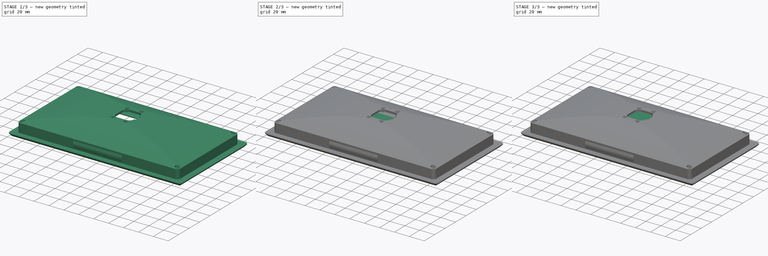
[diagram: build sequence overview — one tinted view per stage of 3, left to right]
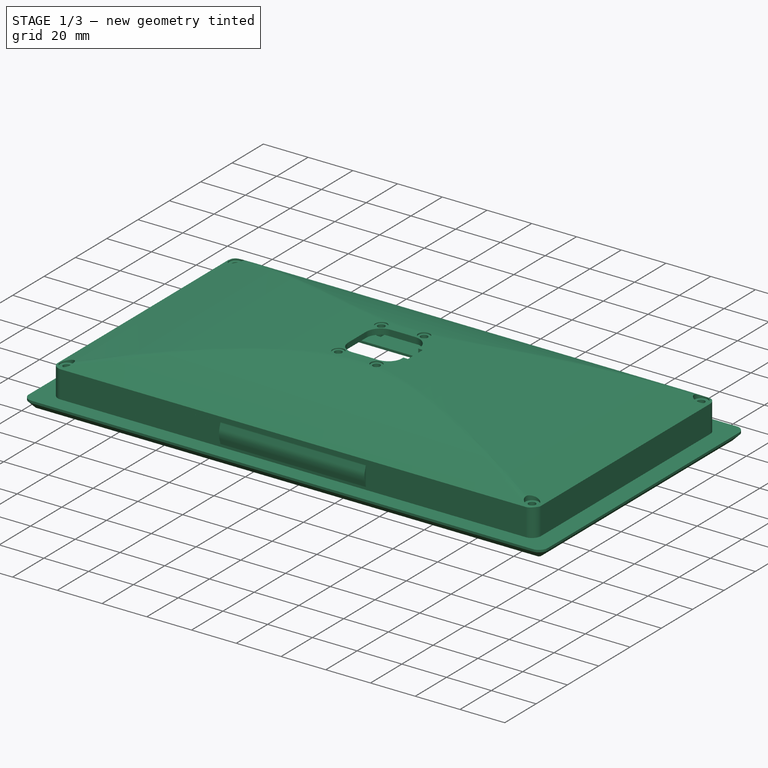
[diagram: stage 1 of 3 — iso view after this stage's code; geometry added in this stage tinted green]
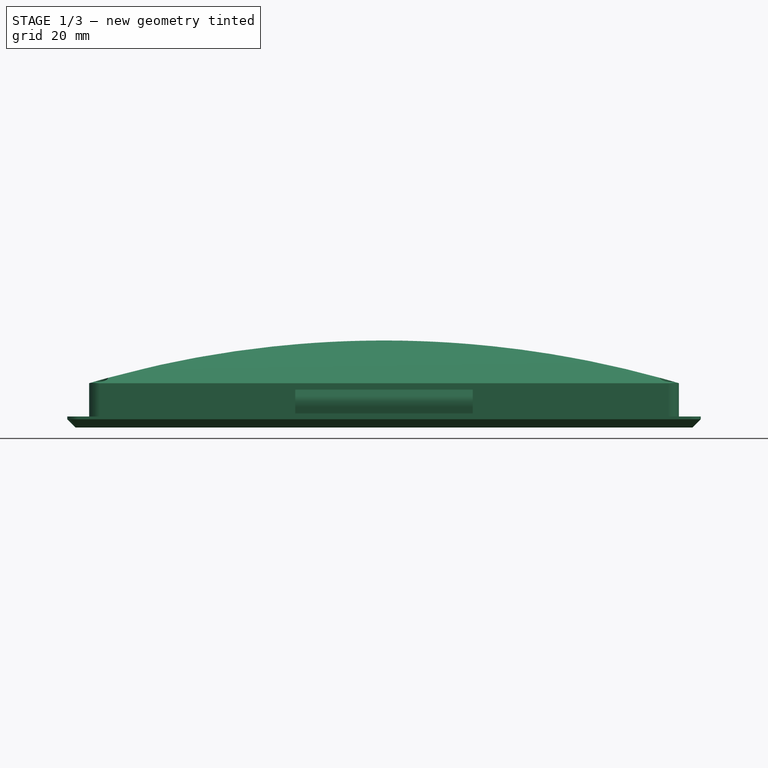
[diagram: stage 1 of 3 — front view after this stage's code; geometry added in this stage tinted green]
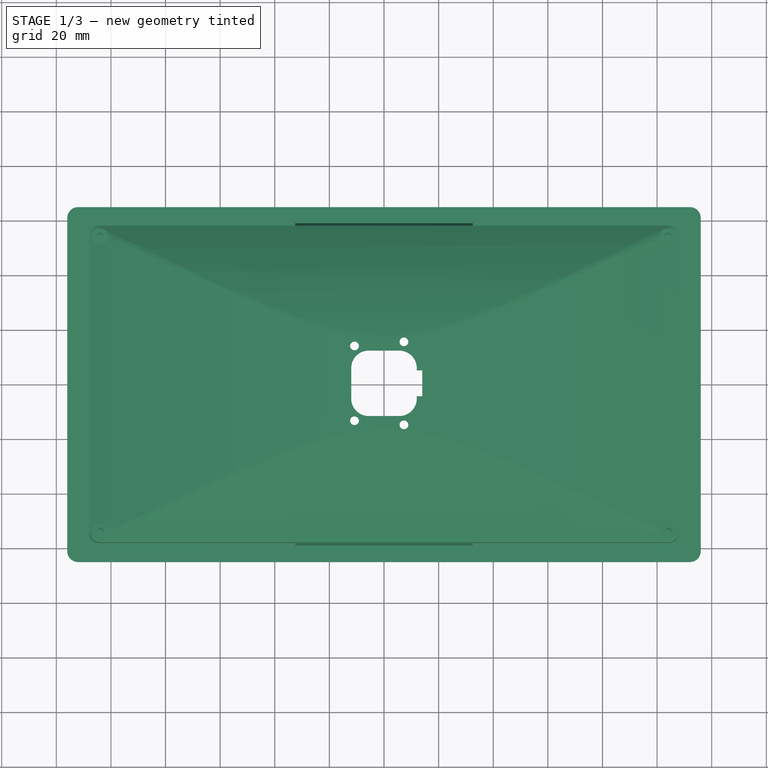
[diagram: stage 1 of 3 — top view after this stage's code; geometry added in this stage tinted green]
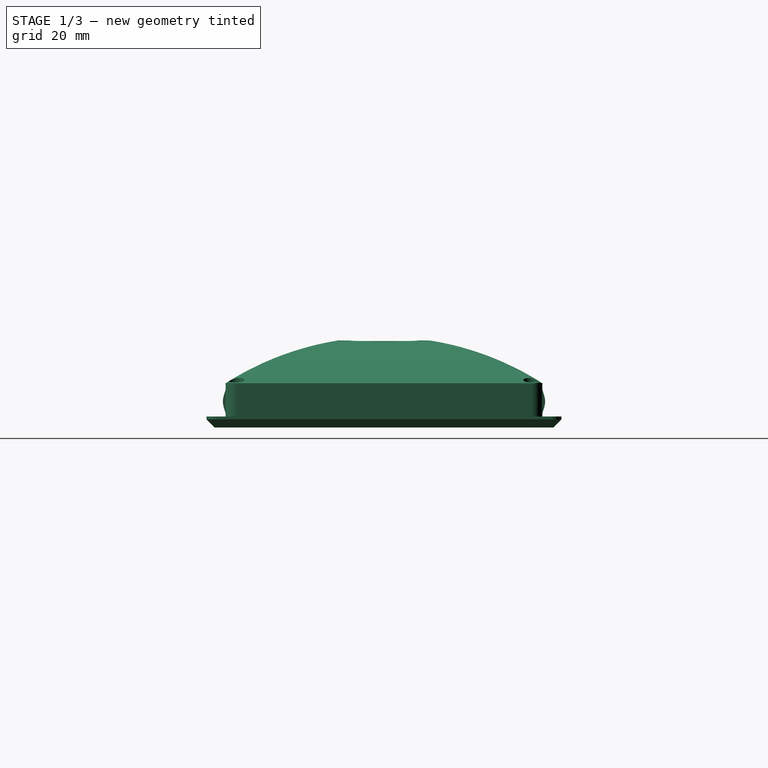
[diagram: stage 1 of 3 — right view after this stage's code; geometry added in this stage tinted green]
FCSTD DOCUMENT  (FreeCAD 0.17R6700 (Git))
Label: display
License: All rights reserved
LicenseURL: http://en.wikipedia.org/wiki/All_rights_reserved
objects: Sketcher::SketchObject×2, PartDesign::Pad×2, Part::FeaturePython×2, Part::Feature×1, Part::Box×1
note: 10 computed .brp shape members not serialized (recipe doc carries the construction recipe); baked Part::Feature solids carry a one-line shape summary decoded from their .brp

FEATURE [Part::FeaturePython] enclosure2_back_01  # a2plus imported part (geometry in sourceFile) (typed FeaturePython)
  fixedPosition = true
  sourceFile = <userpath>/uw/display/hw/enclosure2_back.fcstd
  timeLastImport = 1.50684e+09
  updateColors = true
FEATURE [Part::FeaturePython] enclosure2_front_01  # a2plus imported part (geometry in sourceFile) (typed FeaturePython)
  fixedPosition = false
  sourceFile = <userpath>/uw/display/hw/enclosure2_front.fcstd
  timeLastImport = 1.5045e+09
  updateColors = true
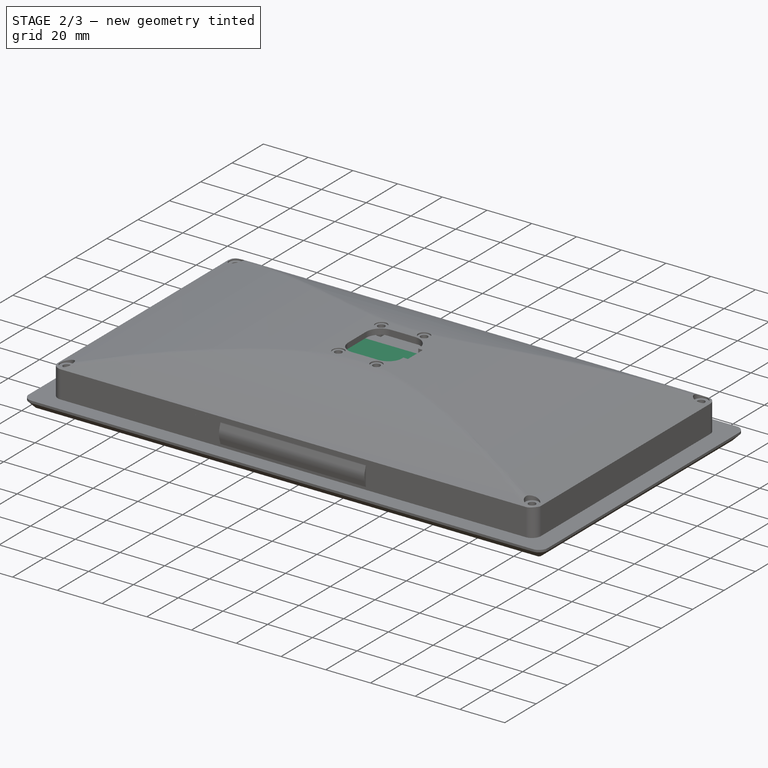
[diagram: stage 2 of 3 — iso view after this stage's code; geometry added in this stage tinted green]
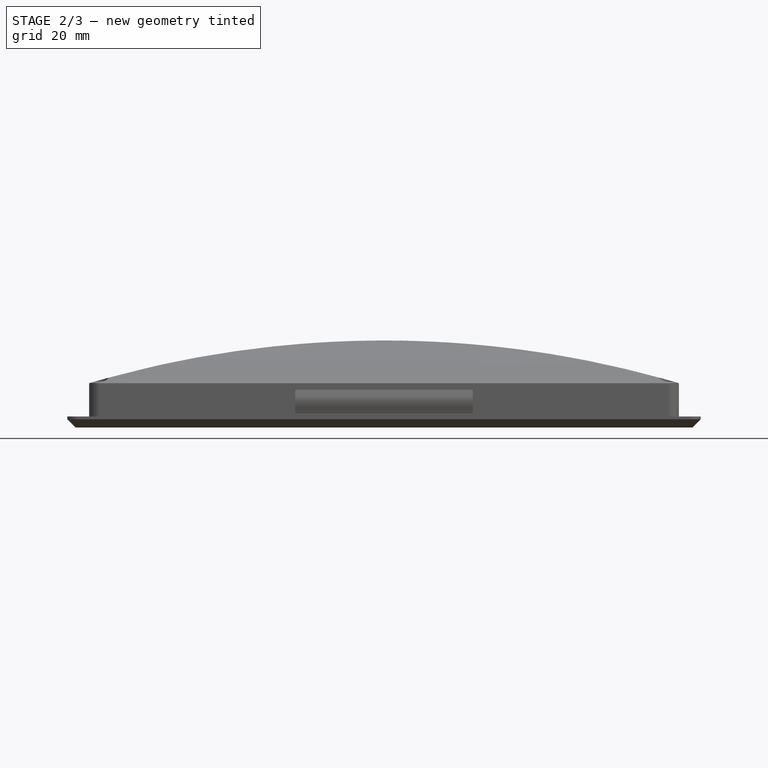
[diagram: stage 2 of 3 — front view after this stage's code; geometry added in this stage tinted green]
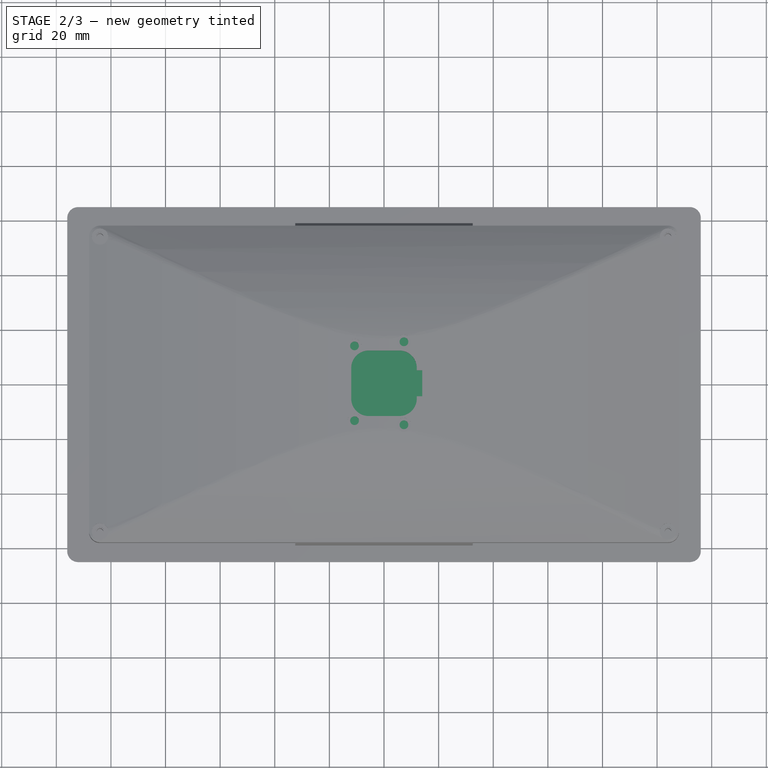
[diagram: stage 2 of 3 — top view after this stage's code; geometry added in this stage tinted green]
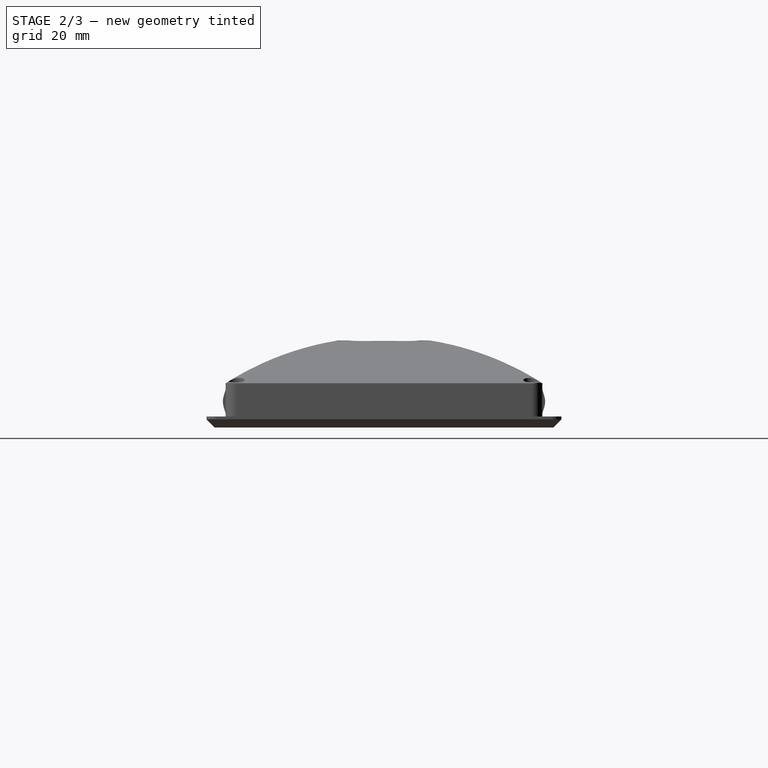
[diagram: stage 2 of 3 — right view after this stage's code; geometry added in this stage tinted green]
FEATURE [Part::Feature] Part__Feature  label="Fusion004"
  Placement = pos=(26.6612,-3.4798,0) rot=(0,0,1;3.14159rad)
  shape: bbox 87.31 x 61.33 x 37.48 mm, 5234 faces (baked)
FEATURE [Part::Box] Box  label="Cube"
  Height = 1.5
  Length = 153.84
  Placement = pos=(-76.92,-38.815,-10) rot=(0,0,1;0rad)
  Width = 85.63
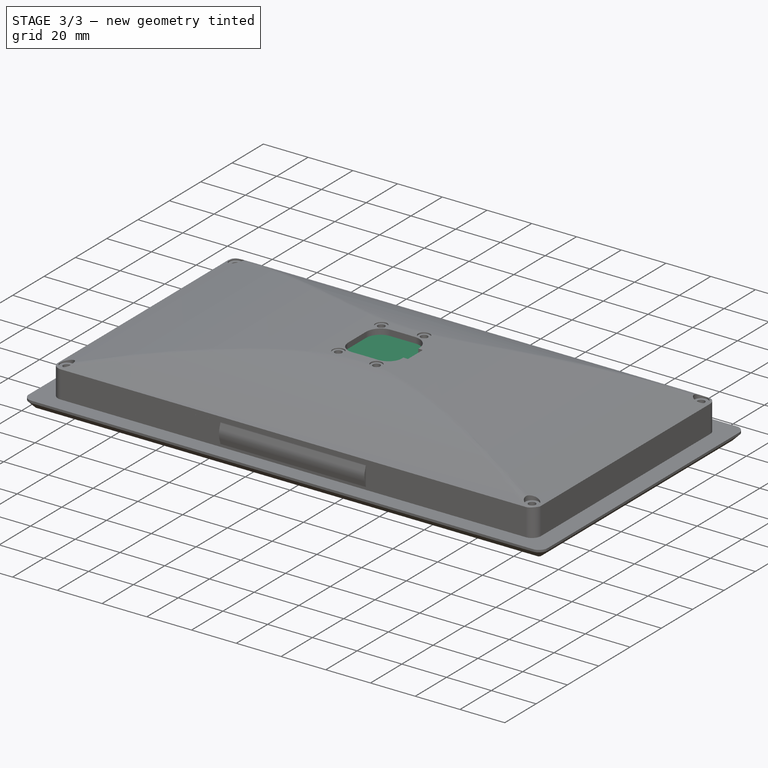
[diagram: stage 3 of 3 — iso view after this stage's code; geometry added in this stage tinted green]
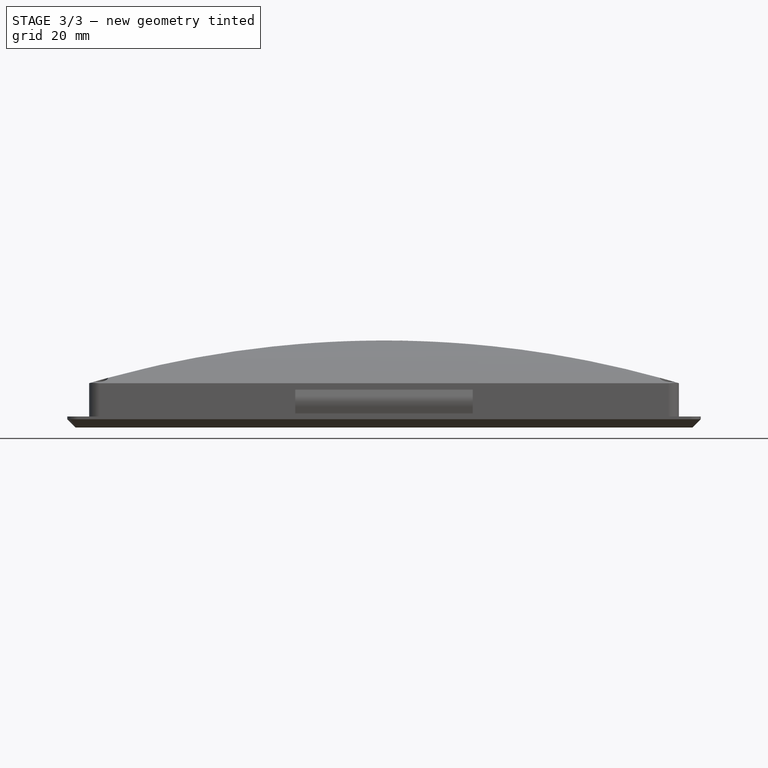
[diagram: stage 3 of 3 — front view after this stage's code; geometry added in this stage tinted green]
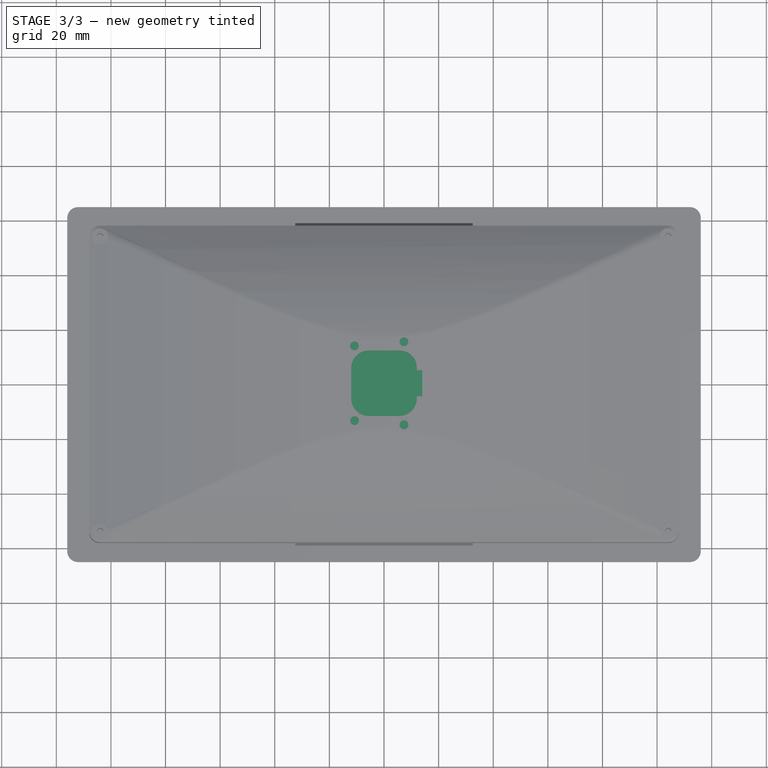
[diagram: stage 3 of 3 — top view after this stage's code; geometry added in this stage tinted green]
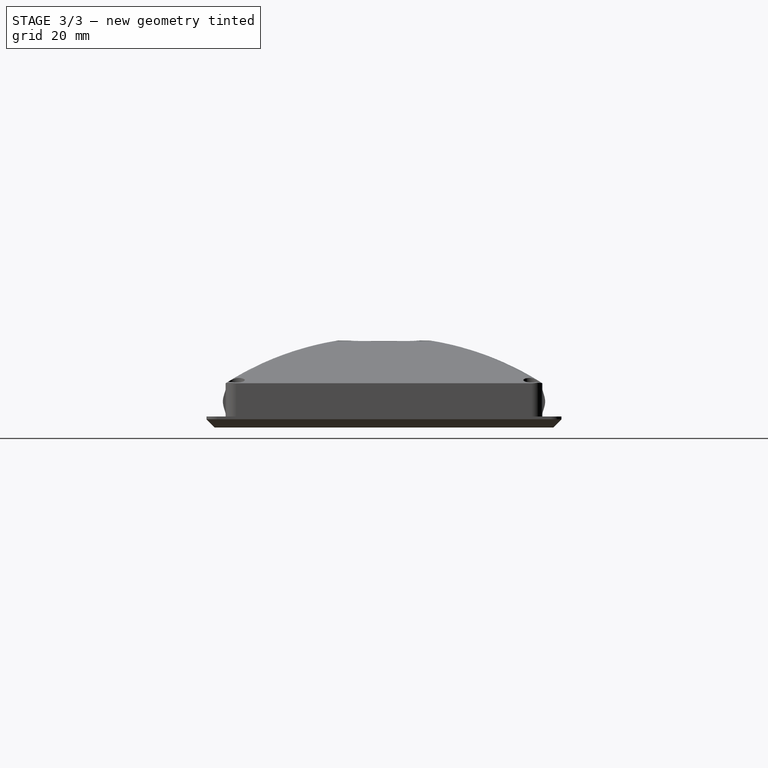
[diagram: stage 3 of 3 — right view after this stage's code; geometry added in this stage tinted green]
FEATURE [Sketcher::SketchObject] Sketch
  ExternalGeometry = -> [Box]
  Placement = pos=(-76.92,-38.815,-8.5) rot=(0,0,1;0rad)
  Support = -> Box [Face6]
  sketch-geometry (6):
    g0: LineSegment StartX=-7.26 StartY=92.515 StartZ=0 EndX=157.74 EndY=92.515 EndZ=0
    g1: LineSegment StartX=157.74 StartY=92.515 StartZ=0 EndX=157.74 EndY=-11.485 EndZ=0
    g2: LineSegment StartX=157.74 StartY=-11.485 StartZ=0 EndX=-7.26 EndY=-11.485 EndZ=0
    g3: LineSegment StartX=-7.26 StartY=-11.485 StartZ=0 EndX=-7.26 EndY=92.515 EndZ=0
    g4: LineSegment [constr] StartX=76.92 StartY=85.63 StartZ=0 EndX=76.92 EndY=0 EndZ=0
    g5: LineSegment [constr] StartX=153.84 StartY=42.815 StartZ=0 EndX=0 EndY=42.815 EndZ=0
  constraints (20):
    c: Coincident(g0,g1)
    c: Coincident(g1,g2)
    c: Coincident(g2,g3)
    c: Coincident(g3,g0)
    c: Horizontal(g0)
    c: Horizontal(g2)
    c: Vertical(g1)
    c: Vertical(g3)
    c: PointOnObject(g4,g-3)
    c: PointOnObject(g4,g-1)
    c: Vertical(g4)
    c: PointOnObject(g5,g-2)
    c: Horizontal(g5)
    c: PointOnObject(g5,g-4)
    c: Symmetric(g-1,g-4,g4)
    c: Symmetric(g-4,g-4,g5)
    c: DistanceX(g4,g1) = 80.82
    c: DistanceY(g5,g0) = 49.7
    c: DistanceX(g2,g2) = 165
    c: DistanceY(g3,g3) = 104
FEATURE [PartDesign::Pad] Pad
  Length = 3.2
  Length2 = 100
  Placement = pos=(-76.92,-38.815,-10) rot=(0,0,1;0rad)
  Sketch = -> Sketch
  Type = 0
FEATURE [Sketcher::SketchObject] Sketch001
  ExternalGeometry = -> [Pad]
  Placement = pos=(-76.92,-50.3,-10) rot=(1,0,0;1.5708rad)
  Support = -> Pad [Face10]
  sketch-geometry (4):
    g0: LineSegment StartX=-7.26 StartY=4.7 StartZ=0 EndX=98.232 EndY=4.7 EndZ=0
    g1: LineSegment StartX=98.232 StartY=4.7 StartZ=0 EndX=98.232 EndY=1.5 EndZ=0
    g2: LineSegment StartX=98.232 StartY=1.5 StartZ=0 EndX=-7.26 EndY=1.5 EndZ=0
    g3: LineSegment StartX=-7.26 StartY=1.5 StartZ=0 EndX=-7.26 EndY=4.7 EndZ=0
  constraints (10):
    c: Coincident(g0,g1)
    c: Coincident(g1,g2)
    c: Coincident(g2,g3)
    c: Coincident(g3,g0)
    c: Horizontal(g0)
    c: Horizontal(g2)
    c: Vertical(g1)
    c: Vertical(g3)
    c: Coincident(g0,g-3)
    c: PointOnObject(g1,g-4)
FEATURE [PartDesign::Pad] Pad001
  Length = 3
  Length2 = 100
  Placement = pos=(-76.92,-38.815,-10) rot=(0,0,1;0rad)
  Sketch = -> Sketch001
  Type = 0
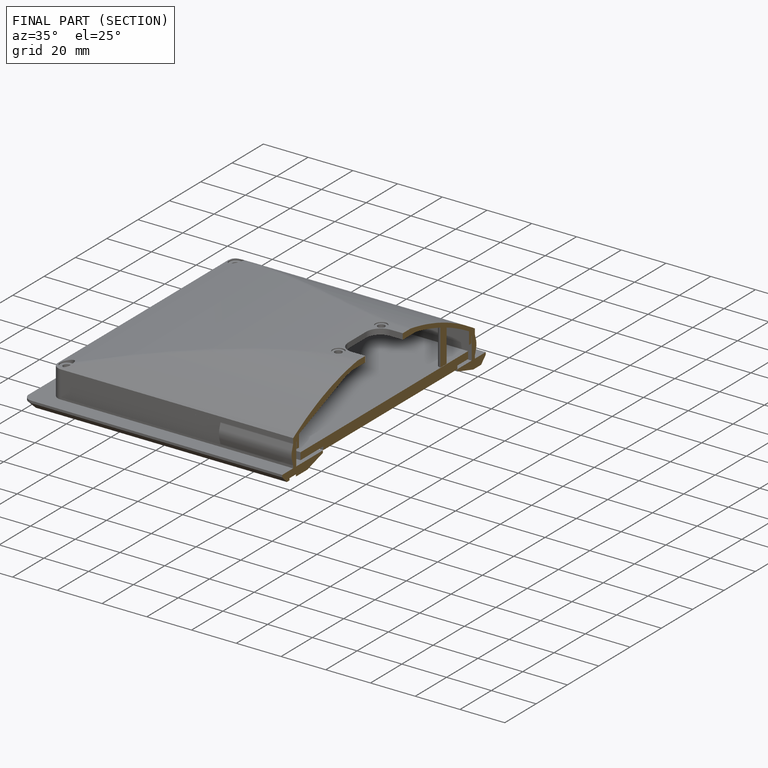
[diagram: finished part — half-section view (interior)]
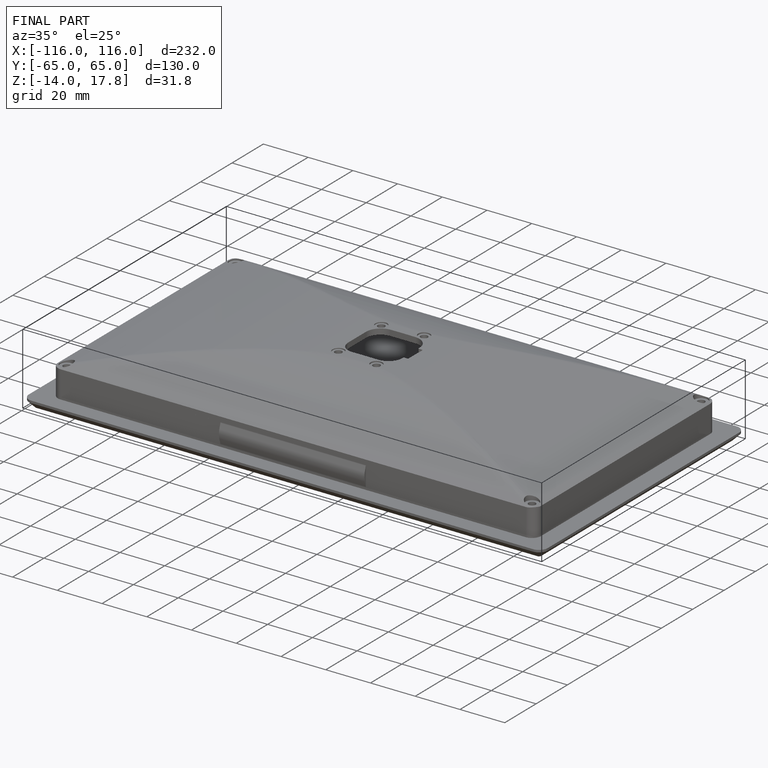
[diagram: finished part — iso view with bounding-box wireframe]
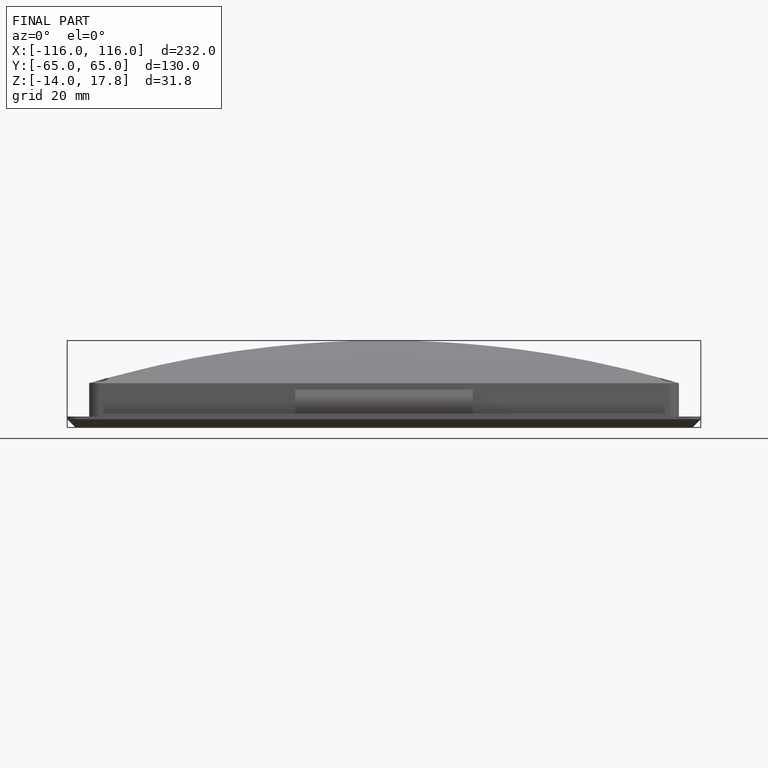
[diagram: finished part — front view with bounding-box wireframe]
